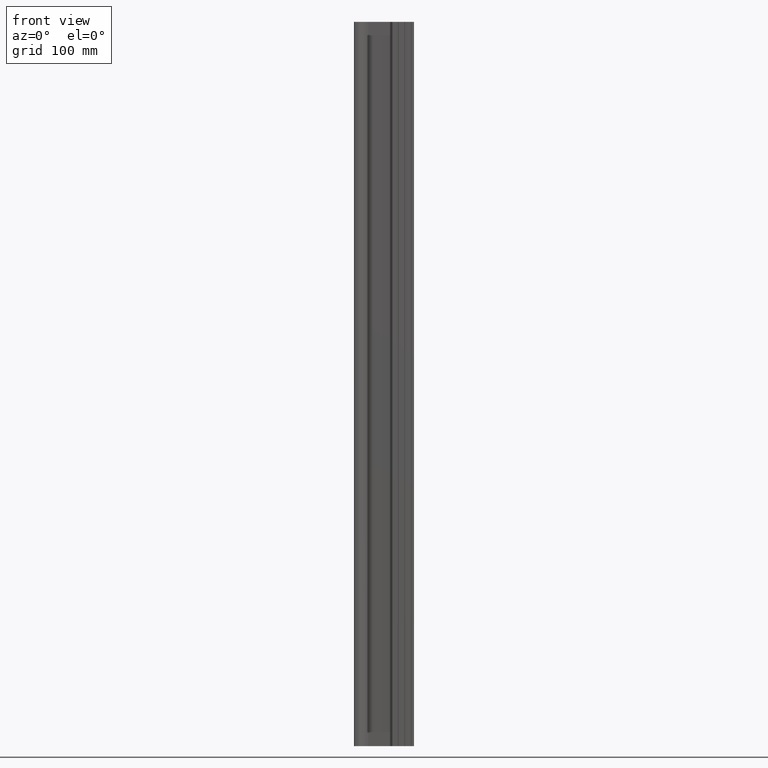
[diagram: clean part render]
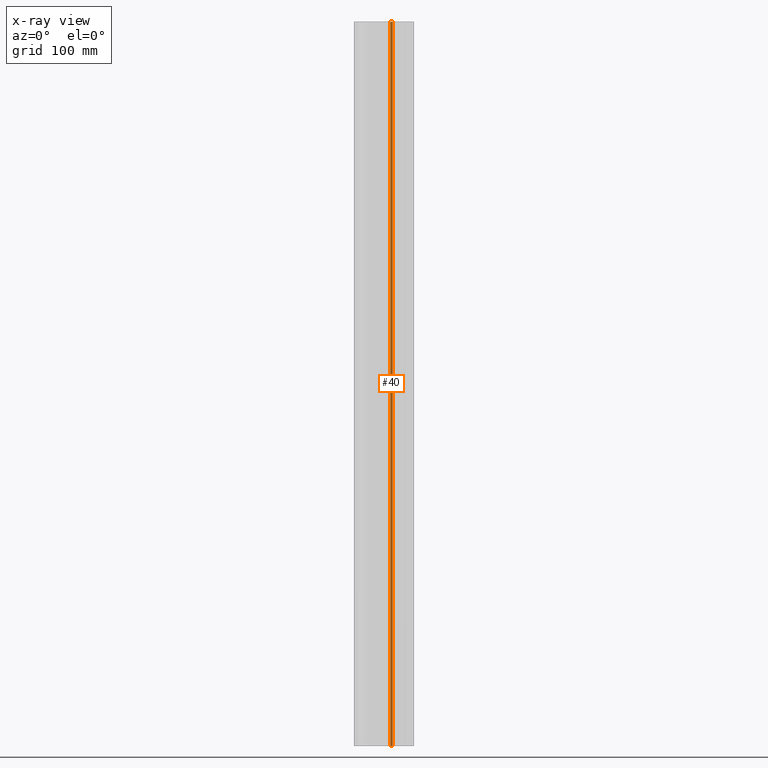
[diagram: x-ray — body ghosted, one internal face saturated and labeled with its STEP entity id]
A machine part, front view, then the same camera in x-ray: the body is ghosted and one INTERNAL B-rep face — a face not visible from any outside direction — is saturated and labeled: STEP entity #40.
In plain terms, the highlighted planar face has unit normal (0.7071, 0.7071, -0).
Its self-contained STEP definition (entity closure, byte-faithful):
#23 = LINE ( 'NONE', #1468, #1704 ) ;
#40 = ADVANCED_FACE ( 'NONE', ( #1831 ), #1264, .F. ) ;
#149 = EDGE_CURVE ( 'NONE', #603, #355, #1232, .T. ) ;
#209 = ORIENTED_EDGE ( 'NONE', *, *, #1582, .F. ) ;
#248 = VECTOR ( 'NONE', #879, 1000.000000000000000 ) ;
#269 = CARTESIAN_POINT ( 'NONE',  ( 50.58578643762683700, -3.585786437626889500, -500.0000000000000000 ) ) ;
#302 = LINE ( 'NONE', #269, #248 ) ;
#355 = VERTEX_POINT ( 'NONE', #1251 ) ;
#496 = DIRECTION ( 'NONE',  ( -0.7071067811865552300, 0.7071067811865398000, 0.0000000000000000000 ) ) ;
#603 = VERTEX_POINT ( 'NONE', #919 ) ;
#649 = ORIENTED_EDGE ( 'NONE', *, *, #846, .T. ) ;
#685 = DIRECTION ( 'NONE',  ( 0.7071067811865398000, 0.7071067811865552300, -0.0000000000000000000 ) ) ;
#708 = CARTESIAN_POINT ( 'NONE',  ( 53.00000000000000700, -6.000000000000004400, -500.0000000000000000 ) ) ;
#740 = VERTEX_POINT ( 'NONE', #708 ) ;
#792 = ORIENTED_EDGE ( 'NONE', *, *, #1015, .T. ) ;
#795 = VECTOR ( 'NONE', #1787, 1000.000000000000000 ) ;
#846 = EDGE_CURVE ( 'NONE', #1364, #740, #302, .T. ) ;
#879 = DIRECTION ( 'NONE',  ( 0.7071067811865552300, -0.7071067811865398000, 0.0000000000000000000 ) ) ;
#909 = EDGE_LOOP ( 'NONE', ( #649, #209, #1452, #792 ) ) ;
#919 = CARTESIAN_POINT ( 'NONE',  ( 50.58578643762683700, -3.585786437626886000, 500.0000000000000000 ) ) ;
#939 = VECTOR ( 'NONE', #1928, 1000.000000000000000 ) ;
#988 = CARTESIAN_POINT ( 'NONE',  ( 50.58578643762683700, -3.585786437626889500, 500.0000000000000000 ) ) ;
#1015 = EDGE_CURVE ( 'NONE', #603, #1364, #23, .T. ) ;
#1048 = LINE ( 'NONE', #1760, #939 ) ;
#1232 = LINE ( 'NONE', #1773, #795 ) ;
#1251 = CARTESIAN_POINT ( 'NONE',  ( 53.00000000000000700, -6.000000000000004400, 500.0000000000000000 ) ) ;
#1264 = PLANE ( 'NONE',  #1348 ) ;
#1318 = CARTESIAN_POINT ( 'NONE',  ( 50.58578643762683700, -3.585786437626886000, -500.0000000000000000 ) ) ;
#1348 = AXIS2_PLACEMENT_3D ( 'NONE', #988, #685, #496 ) ;
#1364 = VERTEX_POINT ( 'NONE', #1318 ) ;
#1452 = ORIENTED_EDGE ( 'NONE', *, *, #149, .F. ) ;
#1468 = CARTESIAN_POINT ( 'NONE',  ( 50.58578643762683700, -3.585786437626886000, 500.0000000000000000 ) ) ;
#1582 = EDGE_CURVE ( 'NONE', #355, #740, #1048, .T. ) ;
#1654 = DIRECTION ( 'NONE',  ( -0.0000000000000000000, -0.0000000000000000000, -1.000000000000000000 ) ) ;
#1704 = VECTOR ( 'NONE', #1654, 1000.000000000000000 ) ;
#1760 = CARTESIAN_POINT ( 'NONE',  ( 53.00000000000000700, -6.000000000000004400, 500.0000000000000000 ) ) ;
#1773 = CARTESIAN_POINT ( 'NONE',  ( 50.58578643762683700, -3.585786437626889500, 500.0000000000000000 ) ) ;
#1787 = DIRECTION ( 'NONE',  ( 0.7071067811865552300, -0.7071067811865398000, 0.0000000000000000000 ) ) ;
#1831 = FACE_OUTER_BOUND ( 'NONE', #909, .T. ) ;
#1928 = DIRECTION ( 'NONE',  ( -0.0000000000000000000, -0.0000000000000000000, -1.000000000000000000 ) ) ;